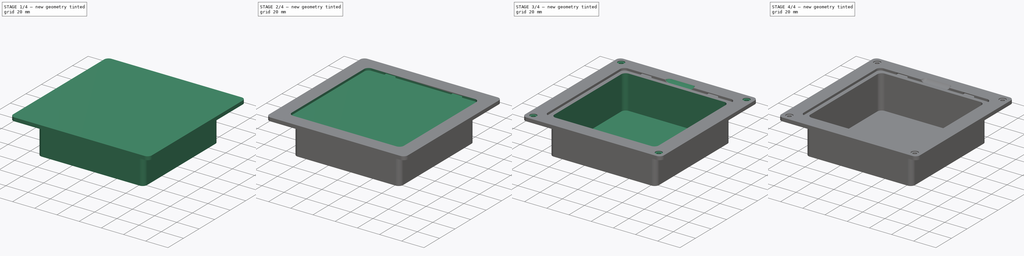
[diagram: build sequence overview — one tinted view per stage of 4, left to right]
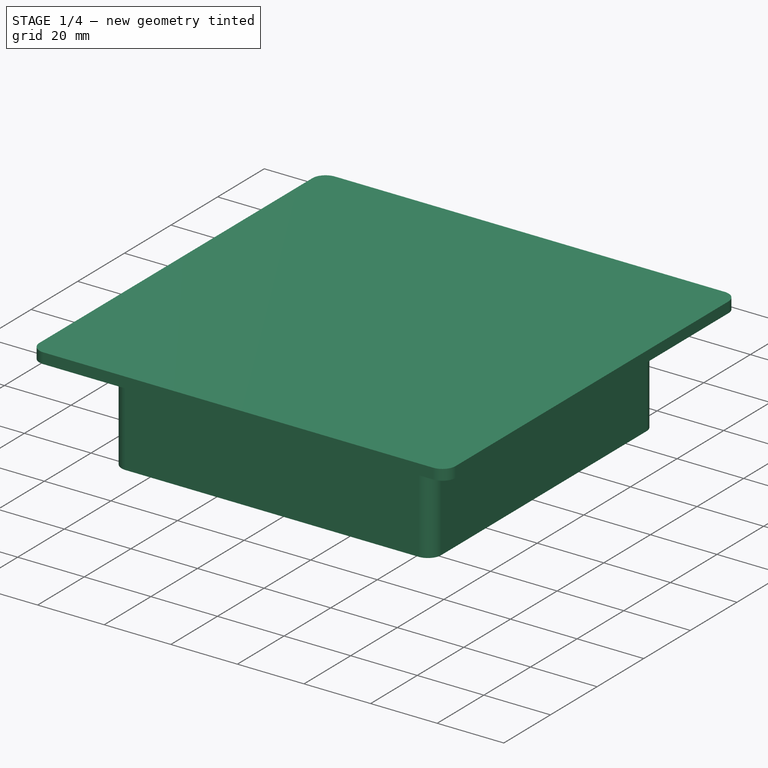
[diagram: stage 1 of 4 — iso view after this stage's code; geometry added in this stage tinted green]
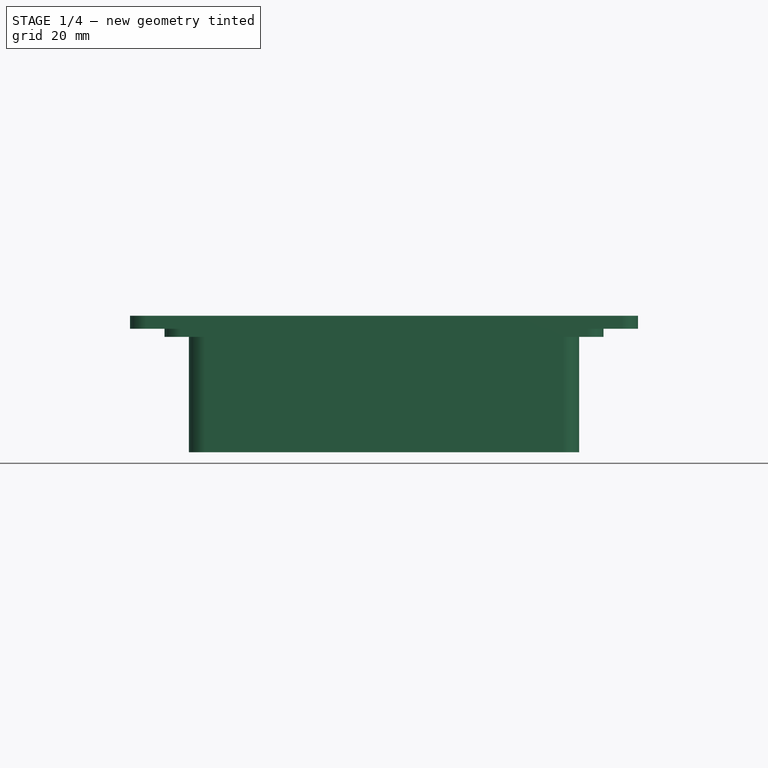
[diagram: stage 1 of 4 — front view after this stage's code; geometry added in this stage tinted green]
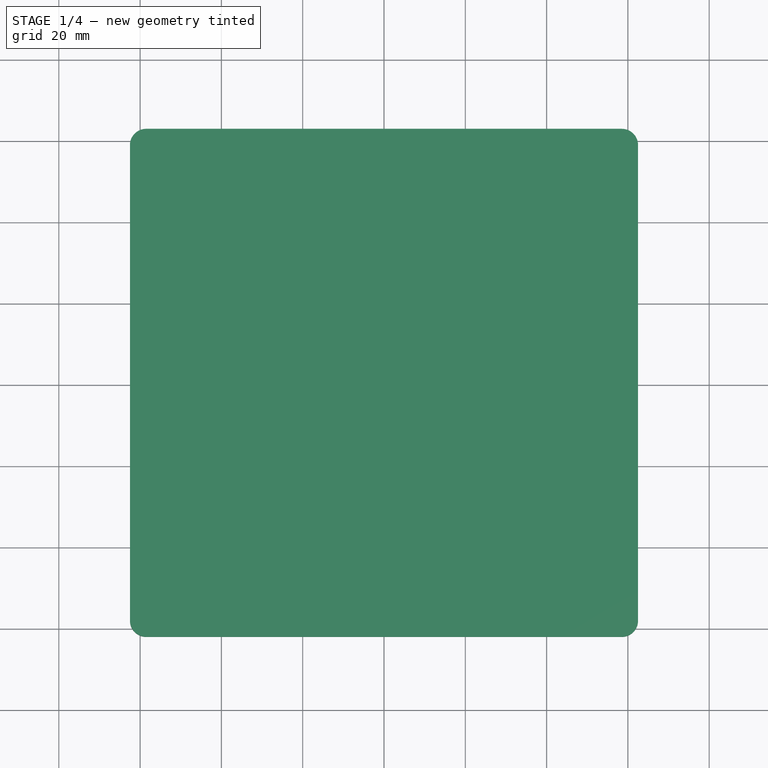
[diagram: stage 1 of 4 — top view after this stage's code; geometry added in this stage tinted green]
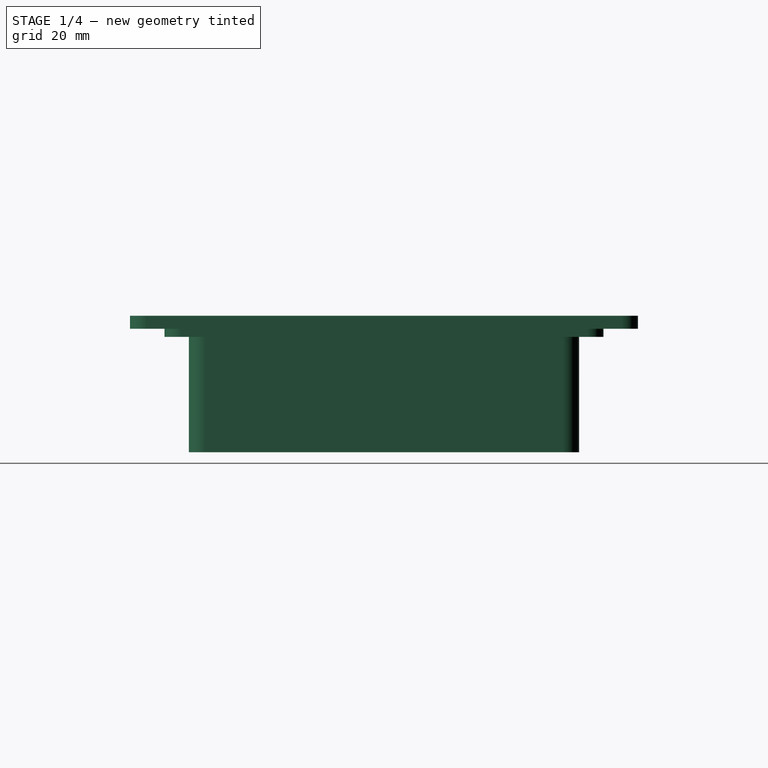
[diagram: stage 1 of 4 — right view after this stage's code; geometry added in this stage tinted green]
FCSTD DOCUMENT  (FreeCAD 0.21R33771 (Git))
Label: BackPocket_V2
License: All rights reserved
LicenseURL: http://en.wikipedia.org/wiki/All_rights_reserved
objects: Sketcher::SketchObject×11, PartDesign::Pocket×7, PartDesign::Pad×3, PartDesign::Chamfer×2, PartDesign::Groove×1, PartDesign::Body×1
note: 38 computed .brp shape members not serialized (recipe doc carries the construction recipe); baked Part::Feature solids carry a one-line shape summary decoded from their .brp

FEATURE [Sketcher::SketchObject] Sketch
  FullyConstrained = true
  MapMode = 5
  Support = -> [XY_Plane]
  sketch-geometry (8):
    g0: LineSegment StartX=-58.5 StartY=62.5 StartZ=0 EndX=58.5 EndY=62.5 EndZ=0
    g1: LineSegment StartX=62.5 StartY=58.5 StartZ=0 EndX=62.5 EndY=-58.5 EndZ=0
    g2: LineSegment StartX=58.5 StartY=-62.5 StartZ=0 EndX=-58.5 EndY=-62.5 EndZ=0
    g3: LineSegment StartX=-62.5 StartY=-58.5 StartZ=0 EndX=-62.5 EndY=58.5 EndZ=0
    g4: ArcOfCircle CenterX=-58.5 CenterY=58.5 CenterZ=0 NormalX=0 NormalY=0 NormalZ=1 AngleXU=0 Radius=4 StartAngle=1.5708 EndAngle=3.14159
    g5: ArcOfCircle CenterX=58.5 CenterY=58.5 CenterZ=0 NormalX=0 NormalY=0 NormalZ=1 AngleXU=0 Radius=4 StartAngle=-9e-16 EndAngle=1.5708
    g6: ArcOfCircle CenterX=58.5 CenterY=-58.5 CenterZ=0 NormalX=0 NormalY=0 NormalZ=1 AngleXU=0 Radius=4 StartAngle=4.71239 EndAngle=6.28319
    g7: ArcOfCircle CenterX=-58.5 CenterY=-58.5 CenterZ=0 NormalX=0 NormalY=0 NormalZ=1 AngleXU=0 Radius=4 StartAngle=3.14159 EndAngle=4.71239
  constraints (18):
    c: Horizontal(g2)
    c: Vertical(g1)
    c: Vertical(g3)
    c: Tangent(g3,g4) = 1.5708
    c: Tangent(g0,g4) = 1.5708
    c: Tangent(g0,g5) = 1.5708
    c: Tangent(g1,g5) = 1.5708
    c: Tangent(g1,g6) = 1.5708
    c: Tangent(g2,g6) = 1.5708
    c: Tangent(g2,g7) = 1.5708
    c: Tangent(g3,g7) = 1.5708
    c: Equal(g4,g5)
    c: Equal(g5,g6)
    c: Diameter(g5) = 8
    c: DistanceX(g3,g1) = 125
    c: DistanceY(g2,g0) = 125
    c: Symmetric(g0,g0,g-2)
    c: Symmetric(g0,g2,g-1)
FEATURE [PartDesign::Pad] Pad  label="Flange"
  Direction = (0,0,1)
  Length = 3.2
  Length2 = 10
  Midplane = true
  Profile = -> Sketch
  ReferenceAxis = -> Sketch [N_Axis]
  Type = 0
FEATURE [Sketcher::SketchObject] Sketch001
  FullyConstrained = true
  MapMode = 5
  Placement = pos=(0,0,-1.6) rot=(1,0,0;3.14159rad)
  Support = -> [Pad]
  sketch-geometry (8):
    g0: LineSegment StartX=-50 StartY=54 StartZ=0 EndX=50 EndY=54 EndZ=0
    g1: LineSegment StartX=54 StartY=50 StartZ=0 EndX=54 EndY=-50 EndZ=0
    g2: LineSegment StartX=50 StartY=-54 StartZ=0 EndX=-50 EndY=-54 EndZ=0
    g3: LineSegment StartX=-54 StartY=-50 StartZ=0 EndX=-54 EndY=50 EndZ=0
    g4: ArcOfCircle CenterX=-50 CenterY=50 CenterZ=0 NormalX=0 NormalY=0 NormalZ=1 AngleXU=0 Radius=4 StartAngle=1.5708 EndAngle=3.14159
    g5: ArcOfCircle CenterX=50 CenterY=50 CenterZ=0 NormalX=0 NormalY=0 NormalZ=1 AngleXU=0 Radius=4 StartAngle=1.31e-14 EndAngle=1.5708
    g6: ArcOfCircle CenterX=50 CenterY=-50 CenterZ=0 NormalX=0 NormalY=0 NormalZ=1 AngleXU=0 Radius=4 StartAngle=4.71239 EndAngle=6.28319
    g7: ArcOfCircle CenterX=-50 CenterY=-50 CenterZ=0 NormalX=0 NormalY=0 NormalZ=1 AngleXU=0 Radius=4 StartAngle=3.14159 EndAngle=4.71239
  constraints (18):
    c: Horizontal(g0)
    c: Horizontal(g2)
    c: Vertical(g3)
    c: Tangent(g3,g4) = 1.5708
    c: Tangent(g0,g4) = 1.5708
    c: Tangent(g0,g5) = 1.5708
    c: Tangent(g1,g5) = 1.5708
    c: Tangent(g1,g6) = 1.5708
    c: Tangent(g2,g6) = 1.5708
    c: Tangent(g2,g7) = 1.5708
    c: Tangent(g3,g7) = 1.5708
    c: Equal(g5,g7)
    c: Equal(g7,g6)
    c: Symmetric(g3,g1,g-2)
    c: Symmetric(g1,g1,g-1)
    c: DistanceY(g2,g0) = 108
    c: DistanceX(g3,g1) = 108
    c: Diameter(g4) = 8
FEATURE [PartDesign::Pad] Pad001  label="CopoBase"
  BaseFeature = -> Pad
  Direction = (0,0,-1)
  Length = 2
  Length2 = 10
  Profile = -> Sketch001
  ReferenceAxis = -> Sketch001 [N_Axis]
  Type = 0
FEATURE [Sketcher::SketchObject] Sketch002
  FullyConstrained = true
  MapMode = 5
  Placement = pos=(0,0,-3.6) rot=(1,0,0;3.14159rad)
  Support = -> [Pad001]
  sketch-geometry (8):
    g0: LineSegment StartX=-44 StartY=48 StartZ=0 EndX=44 EndY=48 EndZ=0
    g1: LineSegment StartX=48 StartY=44 StartZ=0 EndX=48 EndY=-44 EndZ=0
    g2: LineSegment StartX=44 StartY=-48 StartZ=0 EndX=-44 EndY=-48 EndZ=0
    g3: LineSegment StartX=-48 StartY=-44 StartZ=0 EndX=-48 EndY=44 EndZ=0
    g4: ArcOfCircle CenterX=-44 CenterY=44 CenterZ=0 NormalX=0 NormalY=0 NormalZ=1 AngleXU=0 Radius=4 StartAngle=1.5708 EndAngle=3.14159
    g5: ArcOfCircle CenterX=44 CenterY=44 CenterZ=0 NormalX=0 NormalY=0 NormalZ=1 AngleXU=0 Radius=4 StartAngle=0 EndAngle=1.5708
    g6: ArcOfCircle CenterX=44 CenterY=-44 CenterZ=0 NormalX=0 NormalY=0 NormalZ=1 AngleXU=0 Radius=4 StartAngle=4.71239 EndAngle=6.28319
    g7: ArcOfCircle CenterX=-44 CenterY=-44 CenterZ=0 NormalX=0 NormalY=0 NormalZ=1 AngleXU=0 Radius=4 StartAngle=3.14159 EndAngle=4.71239
  constraints (18):
    c: Horizontal(g2)
    c: Vertical(g1)
    c: Tangent(g3,g4) = 1.5708
    c: Tangent(g0,g4) = 1.5708
    c: Tangent(g0,g5) = 1.5708
    c: Tangent(g1,g5) = 1.5708
    c: Tangent(g1,g6) = 1.5708
    c: Tangent(g2,g6) = 1.5708
    c: Tangent(g2,g7) = 1.5708
    c: Tangent(g3,g7) = 1.5708
    c: Equal(g4,g5)
    c: Equal(g5,g6)
    c: Equal(g6,g7)
    c: Symmetric(g0,g0,g-2)
    c: Symmetric(g3,g3,g-1)
    c: Diameter(g4) = 8
    c: DistanceY(g2,g0) = 96
    c: DistanceX(g3,g1) = 96
FEATURE [PartDesign::Pad] Pad002  label="CopoExtendido"
  BaseFeature = -> Pad001
  Direction = (0,0,-1)
  Length = 28.4
  Length2 = 10
  Profile = -> Sketch002
  ReferenceAxis = -> Sketch002 [N_Axis]
  Type = 0
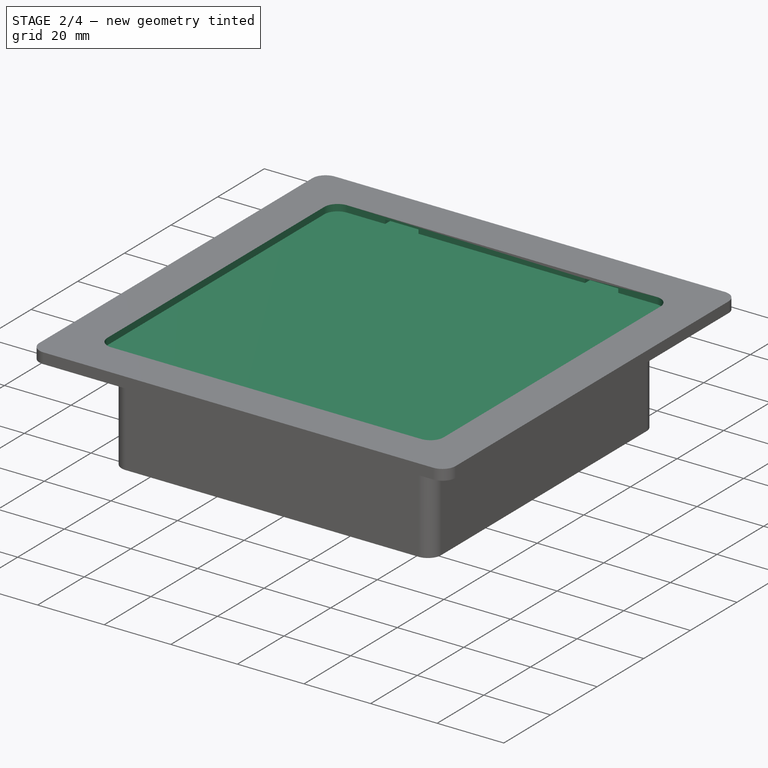
[diagram: stage 2 of 4 — iso view after this stage's code; geometry added in this stage tinted green]
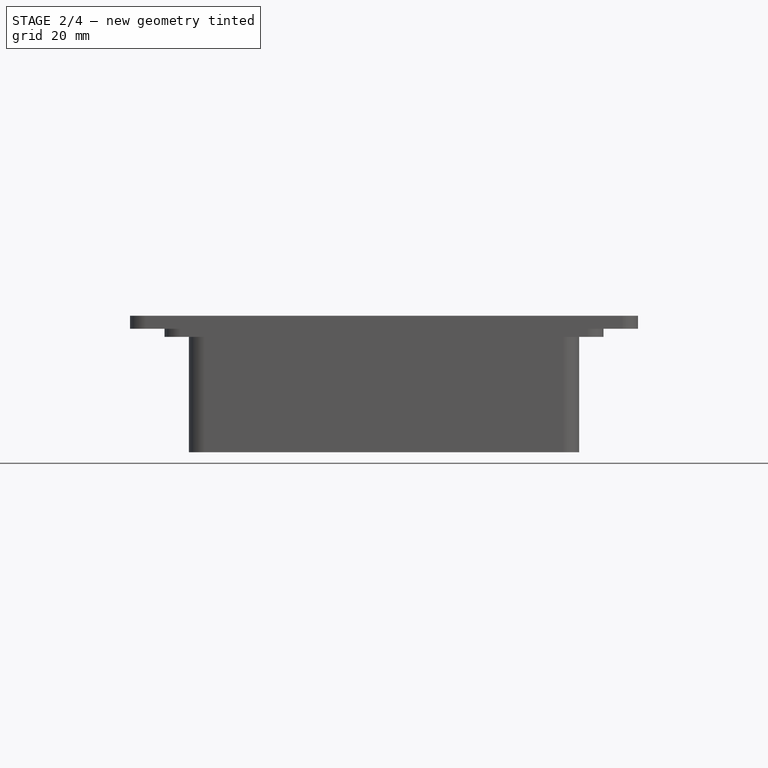
[diagram: stage 2 of 4 — front view after this stage's code; geometry added in this stage tinted green]
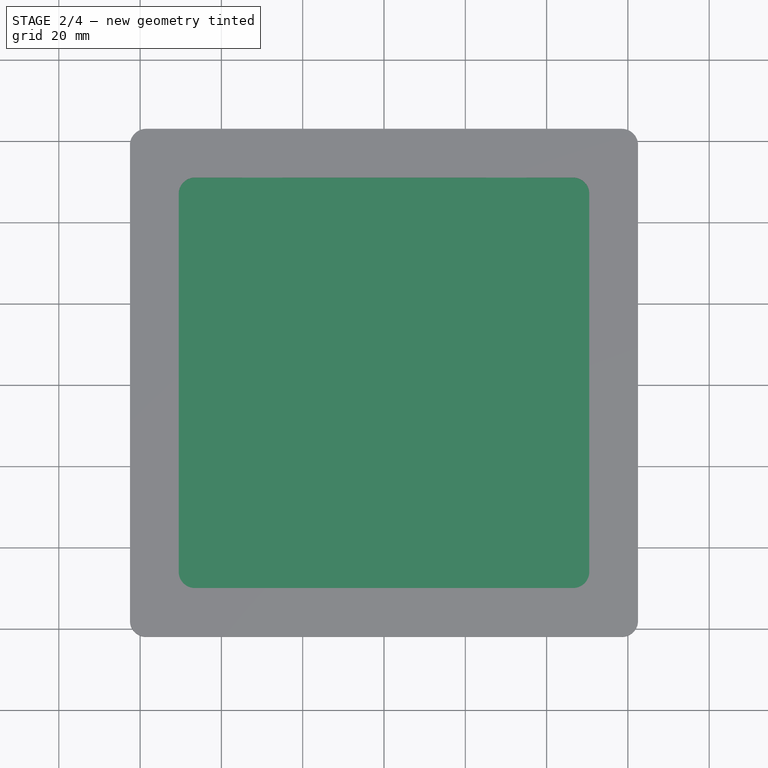
[diagram: stage 2 of 4 — top view after this stage's code; geometry added in this stage tinted green]
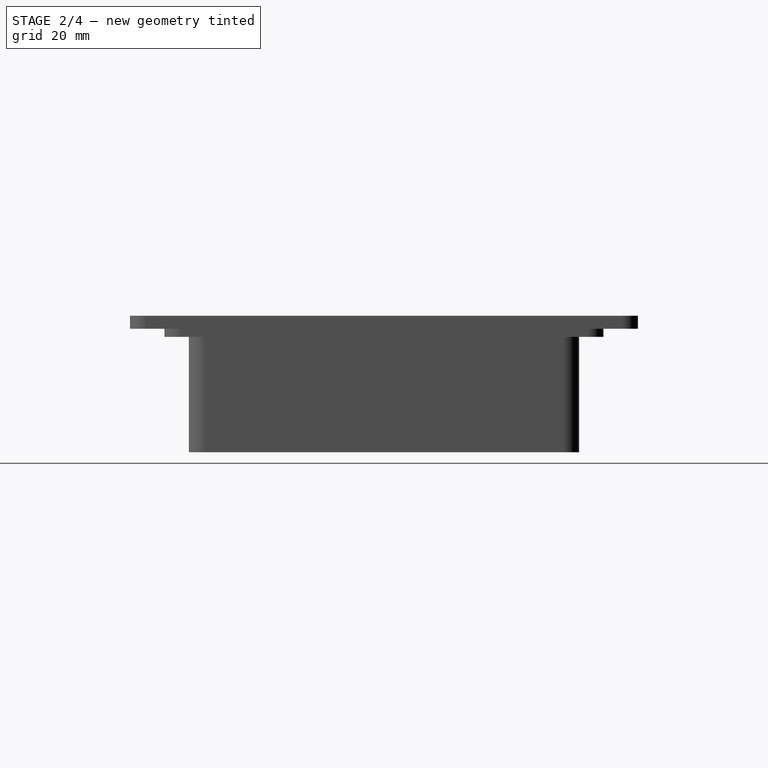
[diagram: stage 2 of 4 — right view after this stage's code; geometry added in this stage tinted green]
FEATURE [Sketcher::SketchObject] Sketch003
  FullyConstrained = true
  MapMode = 5
  Placement = pos=(0,0,1.6) rot=(0,0,1;0rad)
  Support = -> [Pad002]
  sketch-geometry (8):
    g0: LineSegment StartX=-46.5 StartY=50.5 StartZ=0 EndX=46.5 EndY=50.5 EndZ=0
    g1: LineSegment StartX=50.5 StartY=46.5 StartZ=0 EndX=50.5 EndY=-46.5 EndZ=0
    g2: LineSegment StartX=46.5 StartY=-50.5 StartZ=0 EndX=-46.5 EndY=-50.5 EndZ=0
    g3: LineSegment StartX=-50.5 StartY=-46.5 StartZ=0 EndX=-50.5 EndY=46.5 EndZ=0
    g4: ArcOfCircle CenterX=-46.5 CenterY=46.5 CenterZ=0 NormalX=0 NormalY=0 NormalZ=1 AngleXU=0 Radius=4 StartAngle=1.5708 EndAngle=3.14159
    g5: ArcOfCircle CenterX=46.5 CenterY=46.5 CenterZ=0 NormalX=0 NormalY=0 NormalZ=1 AngleXU=0 Radius=4 StartAngle=-9e-16 EndAngle=1.5708
    g6: ArcOfCircle CenterX=46.5 CenterY=-46.5 CenterZ=0 NormalX=0 NormalY=0 NormalZ=1 AngleXU=0 Radius=4 StartAngle=4.71239 EndAngle=6.28319
    g7: ArcOfCircle CenterX=-46.5 CenterY=-46.5 CenterZ=0 NormalX=0 NormalY=0 NormalZ=1 AngleXU=0 Radius=4 StartAngle=3.14159 EndAngle=4.71239
  constraints (18):
    c: Horizontal(g2)
    c: Vertical(g1)
    c: Tangent(g3,g4) = 1.5708
    c: Tangent(g0,g4) = 1.5708
    c: Tangent(g0,g5) = 1.5708
    c: Tangent(g1,g5) = 1.5708
    c: Tangent(g1,g6) = 1.5708
    c: Tangent(g2,g6) = 1.5708
    c: Tangent(g2,g7) = 1.5708
    c: Tangent(g3,g7) = 1.5708
    c: Equal(g4,g5)
    c: Equal(g5,g6)
    c: Equal(g6,g7)
    c: Symmetric(g0,g0,g-2)
    c: Symmetric(g3,g3,g-1)
    c: Diameter(g4) = 8
    c: DistanceY(g2,g0) = 101
    c: DistanceX(g3,g1) = 101
FEATURE [PartDesign::Pocket] Pocket  label="CavaTampa"
  BaseFeature = -> Pad002
  Direction = (0,0,-1)
  Length = 2
  Length2 = 5
  Profile = -> Sketch003
  ReferenceAxis = -> Sketch003 [N_Axis]
  Type = 0
FEATURE [Sketcher::SketchObject] Sketch004
  FullyConstrained = true
  MapMode = 5
  Placement = pos=(0,0,-0.4) rot=(0,0,1;0rad)
  Support = -> [Pocket]
  sketch-geometry (8):
    g0: LineSegment StartX=-43 StartY=47 StartZ=0 EndX=43 EndY=47 EndZ=0
    g1: LineSegment StartX=47 StartY=43 StartZ=0 EndX=47 EndY=-43 EndZ=0
    g2: LineSegment StartX=43 StartY=-47 StartZ=0 EndX=-43 EndY=-47 EndZ=0
    g3: LineSegment StartX=-47 StartY=-43 StartZ=0 EndX=-47 EndY=43 EndZ=0
    g4: ArcOfCircle CenterX=-43 CenterY=43 CenterZ=0 NormalX=0 NormalY=0 NormalZ=1 AngleXU=0 Radius=4 StartAngle=1.5708 EndAngle=3.14159
    g5: ArcOfCircle CenterX=43 CenterY=43 CenterZ=0 NormalX=0 NormalY=0 NormalZ=1 AngleXU=0 Radius=4 StartAngle=0 EndAngle=1.5708
    g6: ArcOfCircle CenterX=43 CenterY=-43 CenterZ=0 NormalX=0 NormalY=0 NormalZ=1 AngleXU=0 Radius=4 StartAngle=4.71239 EndAngle=6.28319
    g7: ArcOfCircle CenterX=-43 CenterY=-43 CenterZ=0 NormalX=0 NormalY=0 NormalZ=1 AngleXU=0 Radius=4 StartAngle=3.14159 EndAngle=4.71239
  constraints (18):
    c: Horizontal(g2)
    c: Vertical(g1)
    c: Tangent(g3,g4) = 1.5708
    c: Tangent(g0,g4) = 1.5708
    c: Tangent(g0,g5) = 1.5708
    c: Tangent(g1,g5) = 1.5708
    c: Tangent(g1,g6) = 1.5708
    c: Tangent(g2,g6) = 1.5708
    c: Tangent(g2,g7) = 1.5708
    c: Tangent(g3,g7) = 1.5708
    c: Equal(g4,g5)
    c: Equal(g5,g6)
    c: Equal(g6,g7)
    c: Diameter(g4) = 8
    c: Symmetric(g3,g3,g-1)
    c: Symmetric(g0,g0,g-2)
    c: DistanceX(g3,g1) = 94
    c: DistanceY(g2,g0) = 94
FEATURE [Sketcher::SketchObject] Sketch005
  FullyConstrained = true
  MapMode = 5
  Placement = pos=(-2.7e-14,50.5,0) rot=(1,0,0;1.5708rad)
  sketch-geometry (8):
    g0: LineSegment StartX=25 StartY=0.8 StartZ=0 EndX=35 EndY=0.8 EndZ=0
    g1: LineSegment StartX=35 StartY=0.8 StartZ=0 EndX=35 EndY=-0.4 EndZ=0
    g2: LineSegment StartX=35 StartY=-0.4 StartZ=0 EndX=25 EndY=-0.4 EndZ=0
    g3: LineSegment StartX=25 StartY=-0.4 StartZ=0 EndX=25 EndY=0.8 EndZ=0
    g4: LineSegment StartX=-25 StartY=0.8 StartZ=0 EndX=-35 EndY=0.8 EndZ=0
    g5: LineSegment StartX=-25 StartY=-0.4 StartZ=0 EndX=-25 EndY=0.8 EndZ=0
    g6: LineSegment StartX=-35 StartY=0.8 StartZ=0 EndX=-35 EndY=-0.4 EndZ=0
    g7: LineSegment StartX=-35 StartY=-0.4 StartZ=0 EndX=-25 EndY=-0.4 EndZ=0
  constraints (24):
    c: Coincident(g0,g1)
    c: Coincident(g1,g2)
    c: Coincident(g2,g3)
    c: Coincident(g3,g0)
    c: Horizontal(g0)
    c: Horizontal(g2)
    c: Vertical(g1)
    c: Vertical(g3)
    c: DistanceX(g0,g0) = 10
    c: DistanceX(g-1,g2) = 25
    c: Coincident(g4,g6)
    c: Coincident(g6,g7)
    c: Coincident(g7,g5)
    c: Coincident(g5,g4)
    c: Horizontal(g4)
    c: Horizontal(g7)
    c: Vertical(g6)
    c: Vertical(g5)
    c: DistanceX(g5,g-1) = 25
    c: Horizontal(g5,g2)
    c: DistanceX(g4,g4) = 10
    c: DistanceY(g6,g4) = 1.2
    c: DistanceY(g-1,g4) = 0.8
    c: Equal(g6,g1)
FEATURE [PartDesign::Pocket] Pocket002  label="CavaTravas1"
  BaseFeature = -> Pocket
  Direction = (-1e-15,1,-2e-16)
  Length = 2.4
  Length2 = 5
  Profile = -> Sketch005
  ReferenceAxis = -> Sketch005 [N_Axis]
  Type = 0
FEATURE [Sketcher::SketchObject] Sketch006
  ExternalGeometry = -> [Pocket002]
  FullyConstrained = true
  MapMode = 5
  Placement = pos=(0,-50.5,0) rot=(0,0.707107,0.707107;3.14159rad)
  Support = -> [Pocket002]
  sketch-geometry (8):
    g0: LineSegment StartX=20 StartY=0.8 StartZ=0 EndX=35 EndY=0.8 EndZ=0
    g1: LineSegment StartX=35 StartY=0.8 StartZ=0 EndX=35 EndY=-0.4 EndZ=0
    g2: LineSegment StartX=35 StartY=-0.4 StartZ=0 EndX=20 EndY=-0.4 EndZ=0
    g3: LineSegment StartX=20 StartY=-0.4 StartZ=0 EndX=20 EndY=0.8 EndZ=0
    g4: LineSegment StartX=-20 StartY=0.8 StartZ=0 EndX=-35 EndY=0.8 EndZ=0
    g5: LineSegment StartX=-35 StartY=0.8 StartZ=0 EndX=-35 EndY=-0.4 EndZ=0
    g6: LineSegment StartX=-35 StartY=-0.4 StartZ=0 EndX=-20 EndY=-0.4 EndZ=0
    g7: LineSegment StartX=-20 StartY=-0.4 StartZ=0 EndX=-20 EndY=0.8 EndZ=0
  constraints (24):
    c: Coincident(g0,g1)
    c: Coincident(g1,g2)
    c: Coincident(g2,g3)
    c: Coincident(g3,g0)
    c: Horizontal(g0)
    c: Horizontal(g2)
    c: Vertical(g1)
    c: Vertical(g3)
    c: Horizontal(g1,g-4)
    c: DistanceY(g0,g-3) = 0.8
    c: DistanceX(g-1,g2) = 20
    c: DistanceX(g0,g0) = 15
    c: Coincident(g4,g5)
    c: Coincident(g5,g6)
    c: Coincident(g6,g7)
    c: Coincident(g7,g4)
    c: Horizontal(g4)
    c: Horizontal(g6)
    c: Vertical(g5)
    c: Vertical(g7)
    c: DistanceX(g6,g-1) = 20
    c: DistanceX(g4,g4) = 15
    c: DistanceY(g4,g-3) = 0.8
    c: Horizontal(g5,g-4)
FEATURE [PartDesign::Pocket] Pocket003  label="CavaTravas2"
  BaseFeature = -> Pocket002
  Direction = (0,-1,2e-16)
  Length = 2.4
  Length2 = 5
  Profile = -> Sketch006
  ReferenceAxis = -> Sketch006 [N_Axis]
  Type = 0
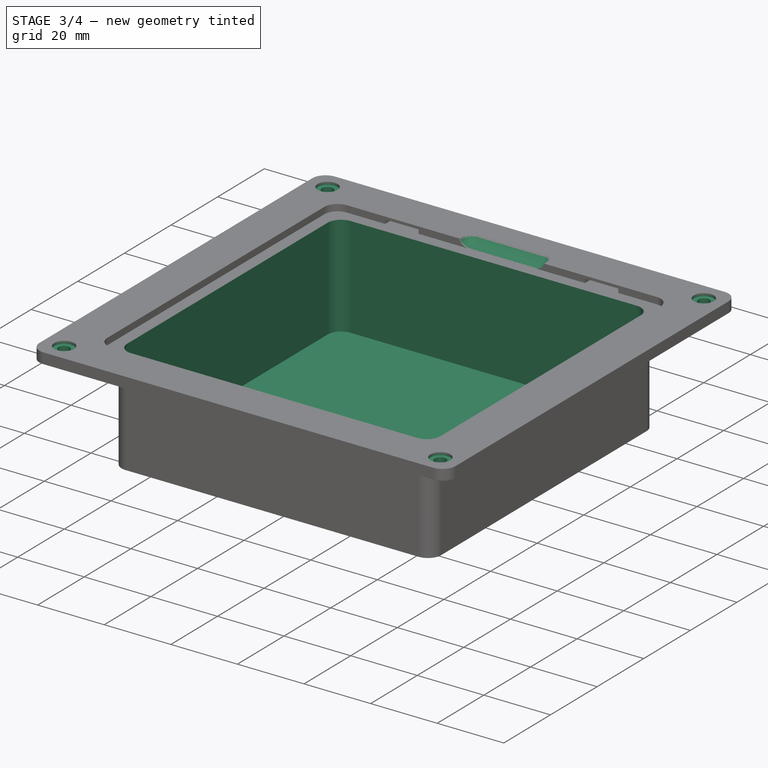
[diagram: stage 3 of 4 — iso view after this stage's code; geometry added in this stage tinted green]
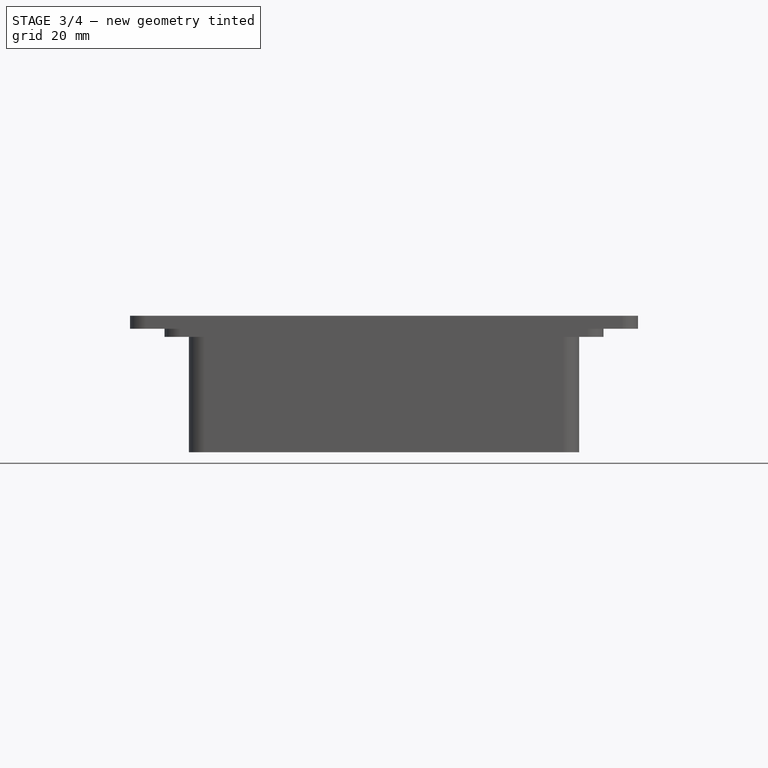
[diagram: stage 3 of 4 — front view after this stage's code; geometry added in this stage tinted green]
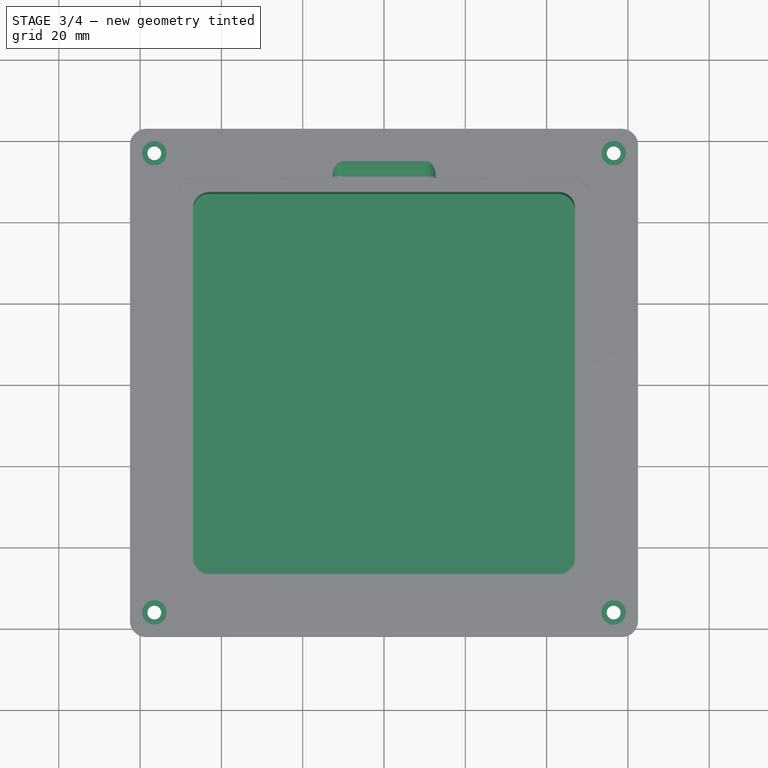
[diagram: stage 3 of 4 — top view after this stage's code; geometry added in this stage tinted green]
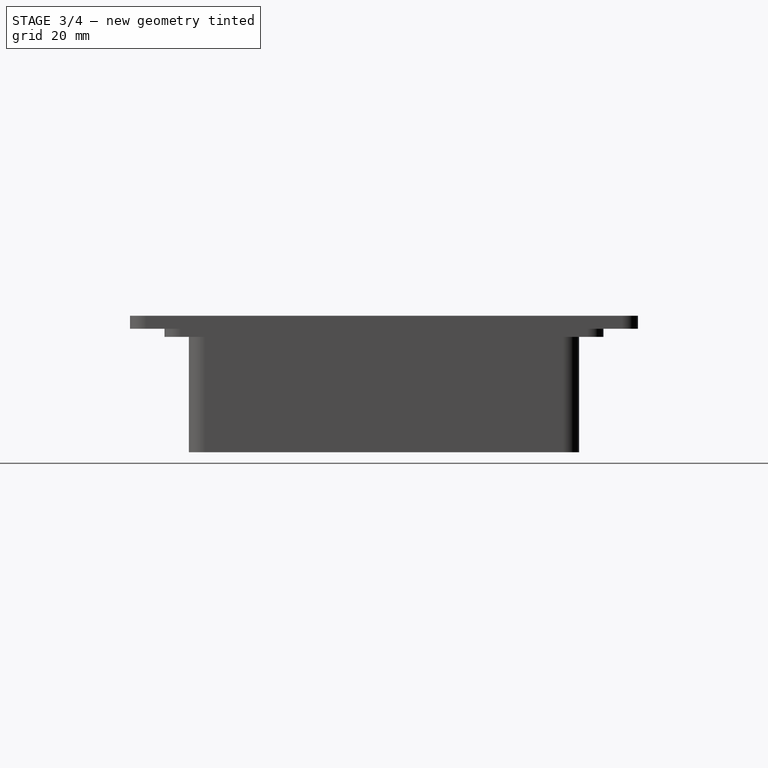
[diagram: stage 3 of 4 — right view after this stage's code; geometry added in this stage tinted green]
FEATURE [PartDesign::Pocket] Pocket009  label="CavaPrincipal"
  BaseFeature = -> Pocket003
  Direction = (0,0,-1)
  Length = 30.34
  Length2 = 5
  Profile = -> Sketch004
  ReferenceAxis = -> Sketch004 [N_Axis]
  Type = 0
FEATURE [Sketcher::SketchObject] Sketch018  label="CavaPuxador"
  FullyConstrained = true
  MapMode = 5
  Placement = pos=(-2.7e-14,50.5,0) rot=(1,0,0;1.5708rad)
  sketch-geometry (4):
    g0: ArcOfCircle CenterX=-10 CenterY=2.51 CenterZ=0 NormalX=0 NormalY=0 NormalZ=1 AngleXU=0 Radius=2.9 StartAngle=1.5708 EndAngle=4.71239
    g1: ArcOfCircle CenterX=10 CenterY=2.51 CenterZ=0 NormalX=0 NormalY=0 NormalZ=1 AngleXU=0 Radius=2.9 StartAngle=4.71239 EndAngle=7.85398
    g2: LineSegment StartX=-10 StartY=-0.39 StartZ=0 EndX=10 EndY=-0.39 EndZ=0
    g3: LineSegment StartX=10 StartY=5.41 StartZ=0 EndX=-10 EndY=5.41 EndZ=0
  constraints (9):
    c: Tangent(g0,g2) = -1.5708
    c: Tangent(g2,g1) = -1.5708
    c: Tangent(g1,g3) = -1.5708
    c: Tangent(g3,g0) = -1.5708
    c: Equal(g0,g1)
    c: Diameter(g0) = 5.8
    c: DistanceX(g0,g1) = 20
    c: Symmetric(g0,g1,g-2)
    c: DistanceY(g0,g-1) = 0.39
FEATURE [PartDesign::Groove] Groove
  Angle = 360
  Axis = (-1,-1e-15,0)
  Base = (10,50.5,5.41)
  BaseFeature = -> Pocket009
  Profile = -> Sketch018
  ReferenceAxis = -> Sketch018 [Edge4]
FEATURE [Sketcher::SketchObject] Sketch019
  ExternalGeometry = -> [Groove]
  FullyConstrained = true
  MapMode = 5
  Placement = pos=(0,0,1.6) rot=(0,0,1;0rad)
  Support = -> [Groove]
  sketch-geometry (4):
    g0: Circle CenterX=-56.5 CenterY=56.5 CenterZ=0 NormalX=0 NormalY=0 NormalZ=1 AngleXU=0 Radius=3
    g1: Circle CenterX=56.5 CenterY=56.5 CenterZ=0 NormalX=0 NormalY=0 NormalZ=1 AngleXU=0 Radius=3
    g2: Circle CenterX=-56.5 CenterY=-56.5 CenterZ=0 NormalX=0 NormalY=0 NormalZ=1 AngleXU=0 Radius=3
    g3: Circle CenterX=56.5 CenterY=-56.5 CenterZ=0 NormalX=0 NormalY=0 NormalZ=1 AngleXU=0 Radius=3
  constraints (9):
    c: DistanceX(g-3,g0) = 2
    c: DistanceY(g0,g-3) = 2
    c: Diameter(g0) = 6
    c: Equal(g0,g1)
    c: Equal(g1,g3)
    c: Equal(g3,g2)
    c: Symmetric(g0,g1,g-2)
    c: Symmetric(g0,g2,g-1)
    c: Symmetric(g2,g3,g-2)
FEATURE [PartDesign::Pocket] Pocket011  label="AlojaCabecaM3"
  BaseFeature = -> Groove
  Direction = (0,0,-1)
  Length = 0.8
  Length2 = 5
  Profile = -> Sketch019
  ReferenceAxis = -> Sketch019 [N_Axis]
  Type = 0
FEATURE [Sketcher::SketchObject] Sketch020
  ExternalGeometry = -> [Pocket011]
  FullyConstrained = true
  MapMode = 5
  Placement = pos=(0,0,1.6) rot=(0,0,1;0rad)
  Support = -> [Pocket011]
  sketch-geometry (4):
    g0: Circle CenterX=-56.5 CenterY=56.5 CenterZ=0 NormalX=0 NormalY=0 NormalZ=1 AngleXU=0 Radius=1.7
    g1: Circle CenterX=56.5 CenterY=56.5 CenterZ=0 NormalX=0 NormalY=0 NormalZ=1 AngleXU=0 Radius=1.7
    g2: Circle CenterX=56.5 CenterY=-56.5 CenterZ=0 NormalX=0 NormalY=0 NormalZ=1 AngleXU=0 Radius=1.7
    g3: Circle CenterX=-56.5 CenterY=-56.5 CenterZ=0 NormalX=0 NormalY=0 NormalZ=1 AngleXU=0 Radius=1.7
  constraints (8):
    c: Coincident(g0,g-3)
    c: Coincident(g1,g-4)
    c: Coincident(g2,g-6)
    c: Coincident(g3,g-5)
    c: Equal(g2,g3)
    c: Equal(g3,g1)
    c: Equal(g1,g0)
    c: Diameter(g0) = 3.4
FEATURE [PartDesign::Pocket] Pocket012  label="FurosM3"
  BaseFeature = -> Pocket011
  Direction = (0,0,-1)
  Length = 5
  Length2 = 5
  Profile = -> Sketch020
  ReferenceAxis = -> Sketch020 [N_Axis]
  Type = 2
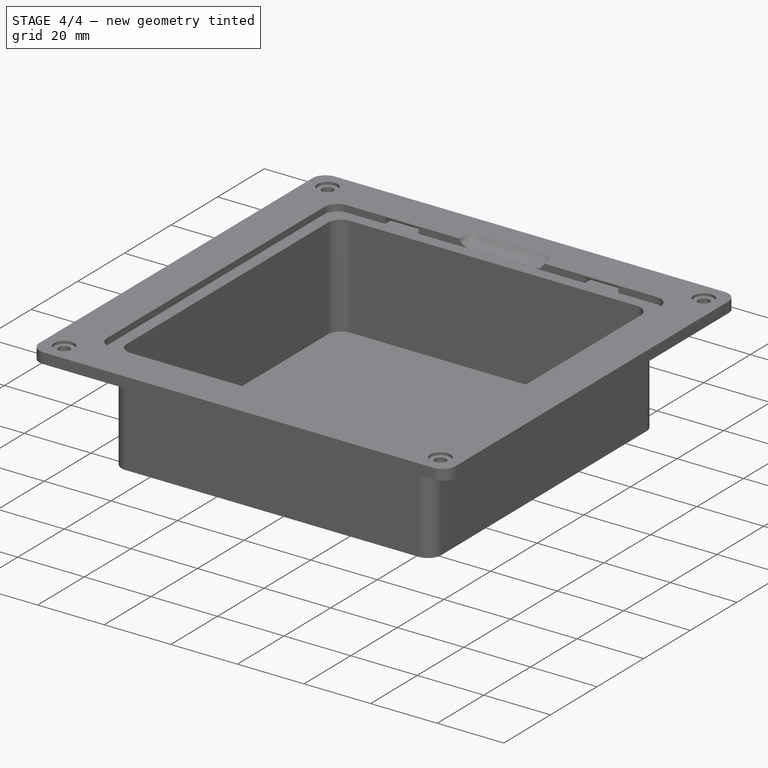
[diagram: stage 4 of 4 — iso view after this stage's code; geometry added in this stage tinted green]
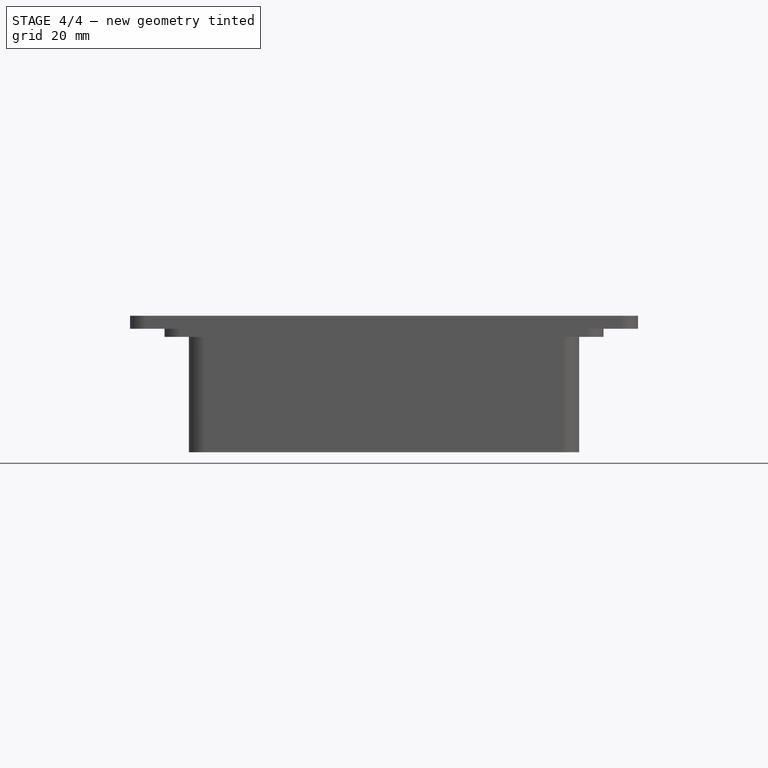
[diagram: stage 4 of 4 — front view after this stage's code; geometry added in this stage tinted green]
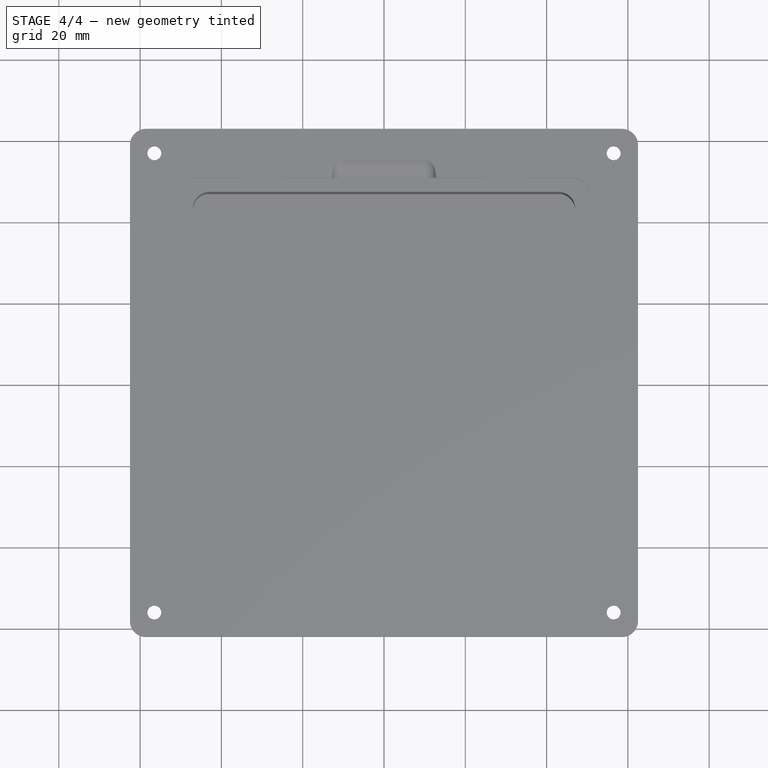
[diagram: stage 4 of 4 — top view after this stage's code; geometry added in this stage tinted green]
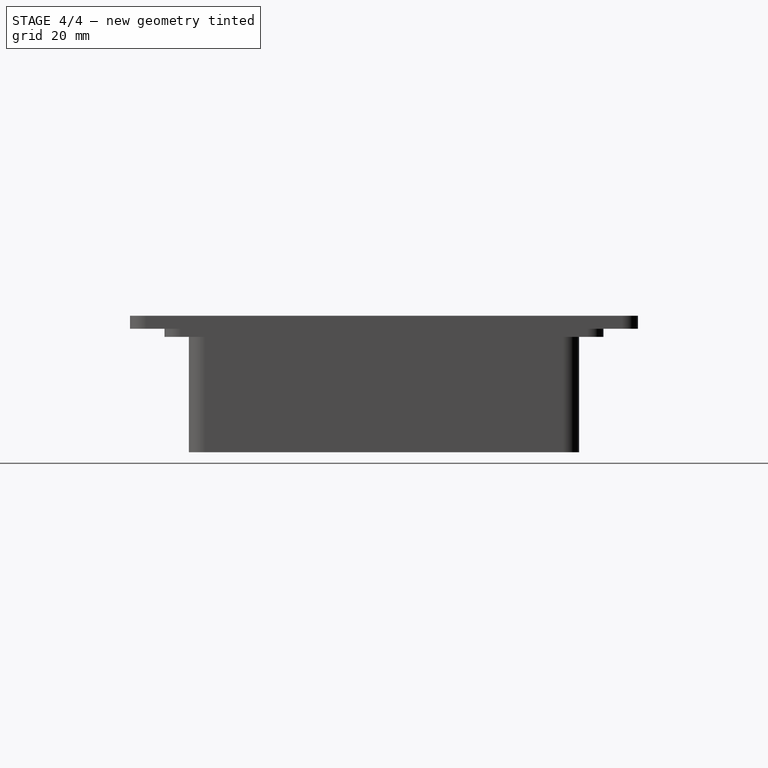
[diagram: stage 4 of 4 — right view after this stage's code; geometry added in this stage tinted green]
FEATURE [Sketcher::SketchObject] Sketch029
  FullyConstrained = false
  MapMode = 5
  Placement = pos=(0,0,-1.6) rot=(1,0,0;3.14159rad)
  sketch-geometry (4):
    g0: Circle CenterX=56.5 CenterY=-56.5 CenterZ=0 NormalX=0 NormalY=0 NormalZ=1 AngleXU=0 Radius=4
    g1: Circle CenterX=-56.5 CenterY=-56.5 CenterZ=0 NormalX=0 NormalY=0 NormalZ=1 AngleXU=0 Radius=4
    g2: Circle CenterX=56.5 CenterY=56.5 CenterZ=0 NormalX=0 NormalY=0 NormalZ=1 AngleXU=0 Radius=4
    g3: Circle CenterX=-56.5 CenterY=56.5 CenterZ=0 NormalX=0 NormalY=0 NormalZ=1 AngleXU=0 Radius=4
  constraints (4):
    c: Equal(g3,g2)
    c: Equal(g2,g0)
    c: Equal(g0,g1)
    c: Diameter(g0) = 8
FEATURE [PartDesign::Pocket] Pocket017  label="AlojaRebites"
  BaseFeature = -> Pocket012
  Direction = (0,0,1)
  Length = 1
  Length2 = 5
  Profile = -> Sketch029
  ReferenceAxis = -> Sketch029 [N_Axis]
  Type = 0
FEATURE [PartDesign::Chamfer] Chamfer
  Angle = 45
  Base = -> Pocket017 [Edge106,Edge110]
  BaseFeature = -> Pocket017
  ChamferType = 0
  FlipDirection = false
  Size = 0.39
  Size2 = 1
  SupportTransform = false
  UseAllEdges = false
FEATURE [PartDesign::Chamfer] Chamfer001
  Angle = 45
  Base = -> Chamfer [Edge94,Edge91]
  BaseFeature = -> Chamfer
  ChamferType = 0
  FlipDirection = false
  Size = 0.38
  Size2 = 1
  SupportTransform = false
  UseAllEdges = false
FEATURE [PartDesign::Body] Body
  Group = -> [Sketch,Pad,Sketch001,Pad001,Sketch002,Pad002,Sketch003,Pocket,Sketch004,Sketch005,Pocket002,Sketch006,Pocket003,Pocket009,Sketch018,Groove,Sketch019,Pocket011,Sketch020,Pocket012,Sketch029,Pocket017,Chamfer,Chamfer001]
  Origin = -> Origin
  Tip = -> Chamfer001
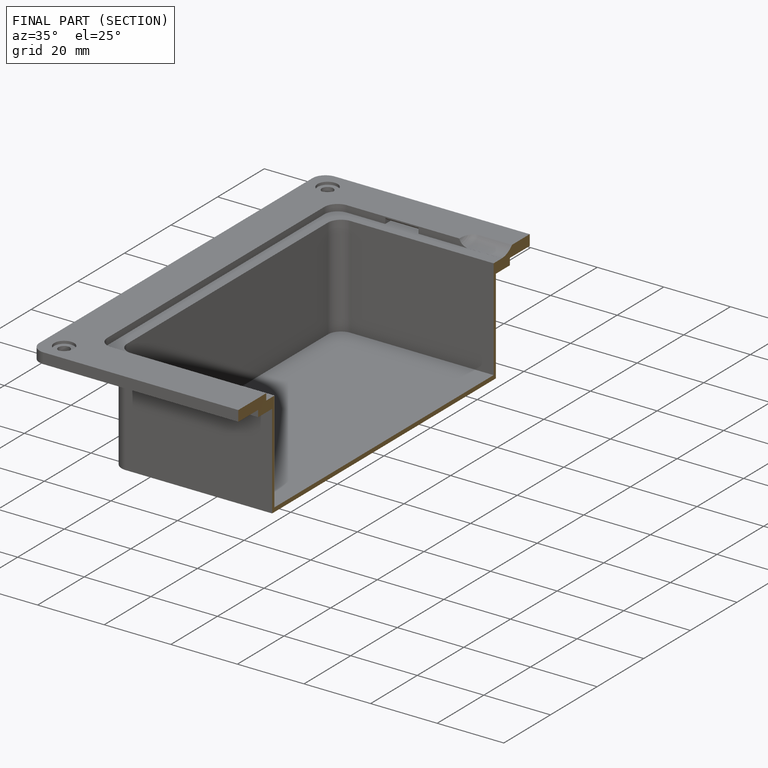
[diagram: finished part — half-section view (interior)]
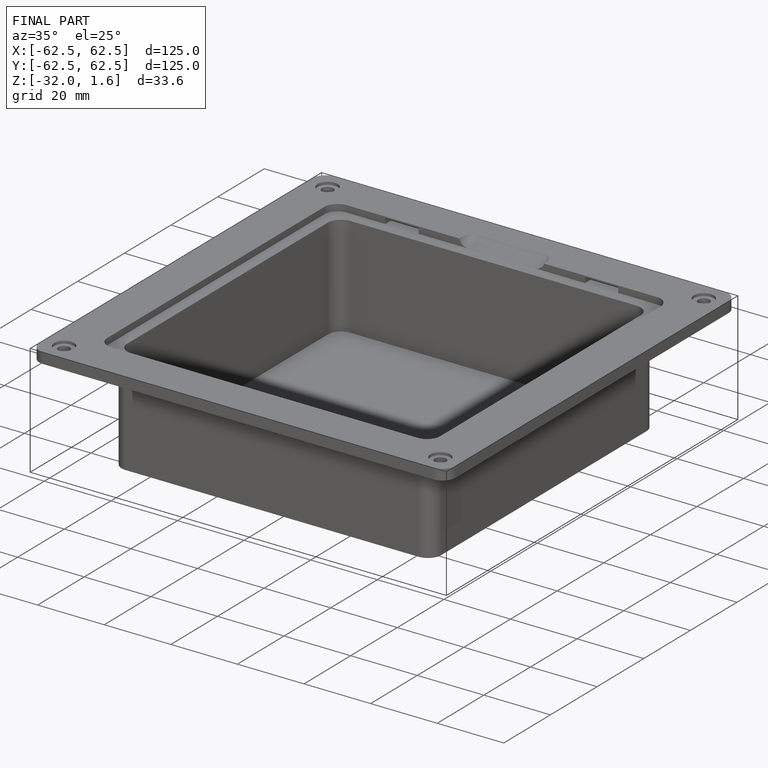
[diagram: finished part — iso view with bounding-box wireframe]
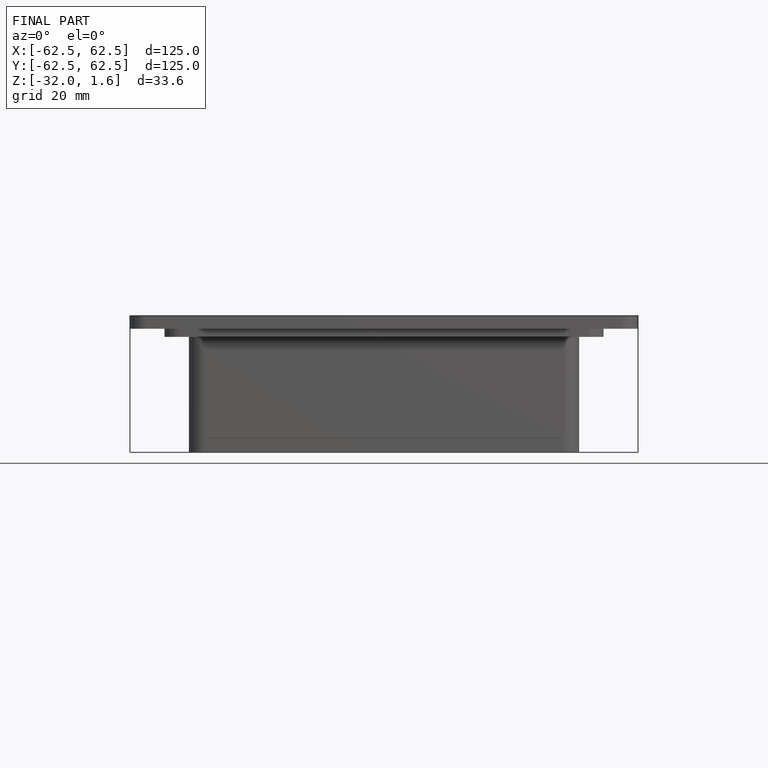
[diagram: finished part — front view with bounding-box wireframe]
